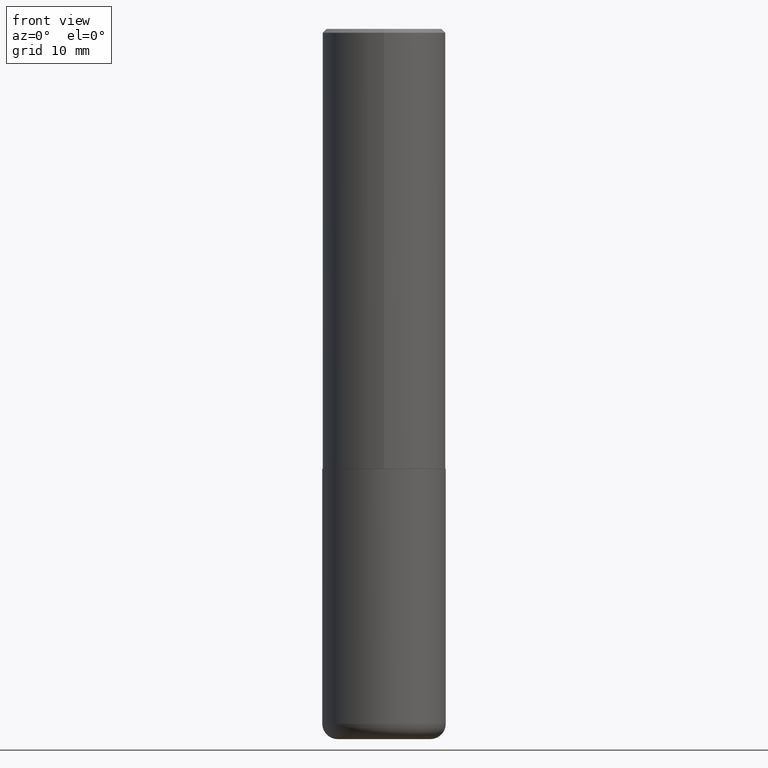
[diagram: clean part render]
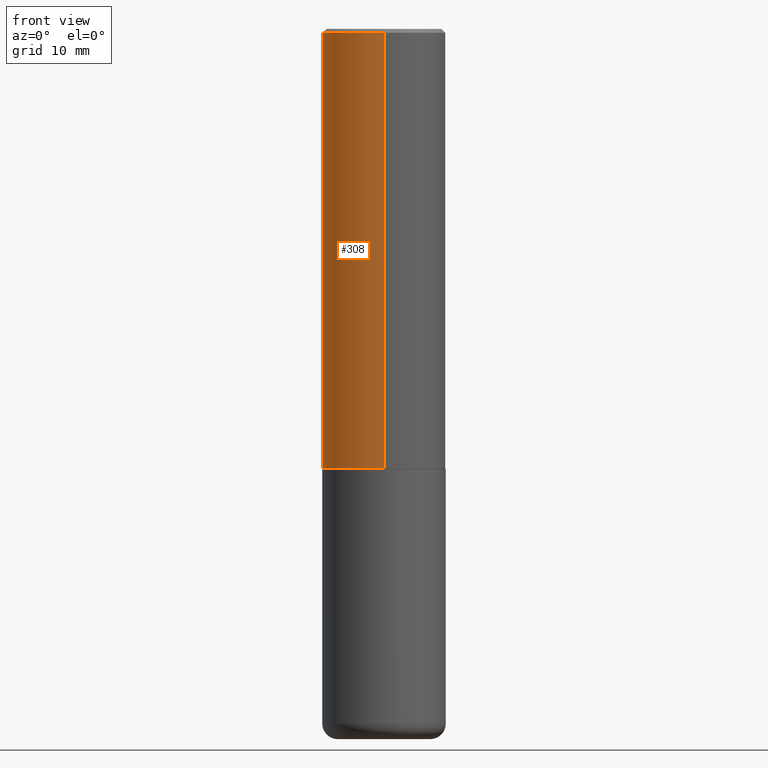
[diagram: same view with one face highlighted and labeled with its STEP entity id]
A machine part, front view. The second image highlights one B-rep face of the part: STEP entity #308.
In plain terms, the highlighted cylindrical surface (partial cylindrical patch) has radius 7.9997 mm, axis along (-0, 0, 1).
Its self-contained STEP definition (entity closure, byte-faithful):
#14 = DIRECTION ( 'NONE',  ( -2.445731576433639542E-29, 3.491105036891335583E-15, 1.000000000000000000 ) ) ;
#18 = ORIENTED_EDGE ( 'NONE', *, *, #123, .T. ) ;
#38 = EDGE_CURVE ( 'NONE', #304, #206, #218, .T. ) ;
#86 = DIRECTION ( 'NONE',  ( -6.982962677686265922E-15, -1.000000000000000000, 3.496670018878888311E-15 ) ) ;
#94 = CARTESIAN_POINT ( 'NONE',  ( -2.160713844398143757E-15, -0.3149500000000001743, -0.01999999999999896652 ) ) ;
#116 = DIRECTION ( 'NONE',  ( -6.982962677686265922E-15, -1.000000000000000000, 3.469564049740290009E-15 ) ) ;
#121 = CARTESIAN_POINT ( 'NONE',  ( 4.891463152867296425E-31, -6.982210073782693945E-17, -0.02000000000000006981 ) ) ;
#123 = EDGE_CURVE ( 'NONE', #206, #210, #154, .T. ) ;
#124 = DIRECTION ( 'NONE',  ( -2.445731576433639542E-29, 3.491105036891335583E-15, 1.000000000000000000 ) ) ;
#128 = LINE ( 'NONE', #236, #363 ) ;
#139 = CIRCLE ( 'NONE', #302, 0.3149500000000000632 ) ;
#144 = EDGE_LOOP ( 'NONE', ( #407, #336, #18, #300 ) ) ;
#154 = LINE ( 'NONE', #185, #186 ) ;
#163 = CARTESIAN_POINT ( 'NONE',  ( 0.000000000000000000, 0.000000000000000000, 0.000000000000000000 ) ) ;
#178 = CARTESIAN_POINT ( 'NONE',  ( 2.199284095337290265E-15, 0.3149500000000000077, -0.02000000000000116962 ) ) ;
#182 = EDGE_CURVE ( 'NONE', #373, #210, #139, .T. ) ;
#185 = CARTESIAN_POINT ( 'NONE',  ( -2.199284095337290265E-15, -0.3149500000000001743, 1.099523531368926621E-15 ) ) ;
#186 = VECTOR ( 'NONE', #314, 39.37007874015748143 ) ;
#206 = VERTEX_POINT ( 'NONE', #317 ) ;
#210 = VERTEX_POINT ( 'NONE', #94 ) ;
#218 = CIRCLE ( 'NONE', #416, 0.3149500000000002853 ) ;
#227 = DIRECTION ( 'NONE',  ( -6.982962677686264344E-15, -1.000000000000000000, 3.491105036891335189E-15 ) ) ;
#230 = DIRECTION ( 'NONE',  ( -2.445731576433639542E-29, 3.491105036891335583E-15, 1.000000000000000000 ) ) ;
#236 = CARTESIAN_POINT ( 'NONE',  ( 2.237854346276435985E-15, 0.3149500000000001743, -1.099523531368926621E-15 ) ) ;
#263 = CARTESIAN_POINT ( 'NONE',  ( 2.237854346276464384E-15, 0.3149499999999924027, -2.243000000000000771 ) ) ;
#286 = EDGE_CURVE ( 'NONE', #304, #373, #128, .T. ) ;
#294 = CYLINDRICAL_SURFACE ( 'NONE', #319, 0.3149500000000001743 ) ;
#296 = FACE_OUTER_BOUND ( 'NONE', #144, .T. ) ;
#300 = ORIENTED_EDGE ( 'NONE', *, *, #182, .F. ) ;
#302 = AXIS2_PLACEMENT_3D ( 'NONE', #121, #386, #86 ) ;
#304 = VERTEX_POINT ( 'NONE', #263 ) ;
#308 = ADVANCED_FACE ( 'NONE', ( #296 ), #294, .T. ) ;
#314 = DIRECTION ( 'NONE',  ( -2.445731576433639542E-29, 3.491105036891335583E-15, 1.000000000000000000 ) ) ;
#317 = CARTESIAN_POINT ( 'NONE',  ( -2.199284095337236228E-15, -0.3149500000000081124, -2.242999999999998550 ) ) ;
#319 = AXIS2_PLACEMENT_3D ( 'NONE', #163, #230, #227 ) ;
#336 = ORIENTED_EDGE ( 'NONE', *, *, #38, .T. ) ;
#356 = CARTESIAN_POINT ( 'NONE',  ( 5.485775925940652970E-29, -7.830548597747266147E-15, -2.242999999999999883 ) ) ;
#363 = VECTOR ( 'NONE', #14, 39.37007874015748143 ) ;
#373 = VERTEX_POINT ( 'NONE', #178 ) ;
#386 = DIRECTION ( 'NONE',  ( -2.445731576433639542E-29, 3.491105036891335583E-15, 1.000000000000000000 ) ) ;
#407 = ORIENTED_EDGE ( 'NONE', *, *, #286, .F. ) ;
#416 = AXIS2_PLACEMENT_3D ( 'NONE', #356, #124, #116 ) ;